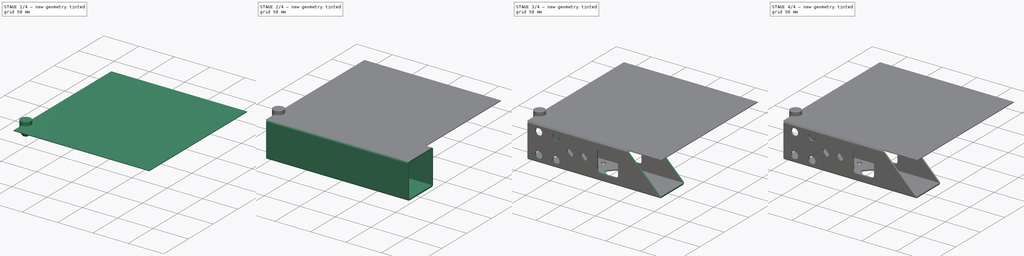
[diagram: build sequence overview — one tinted view per stage of 4, left to right]
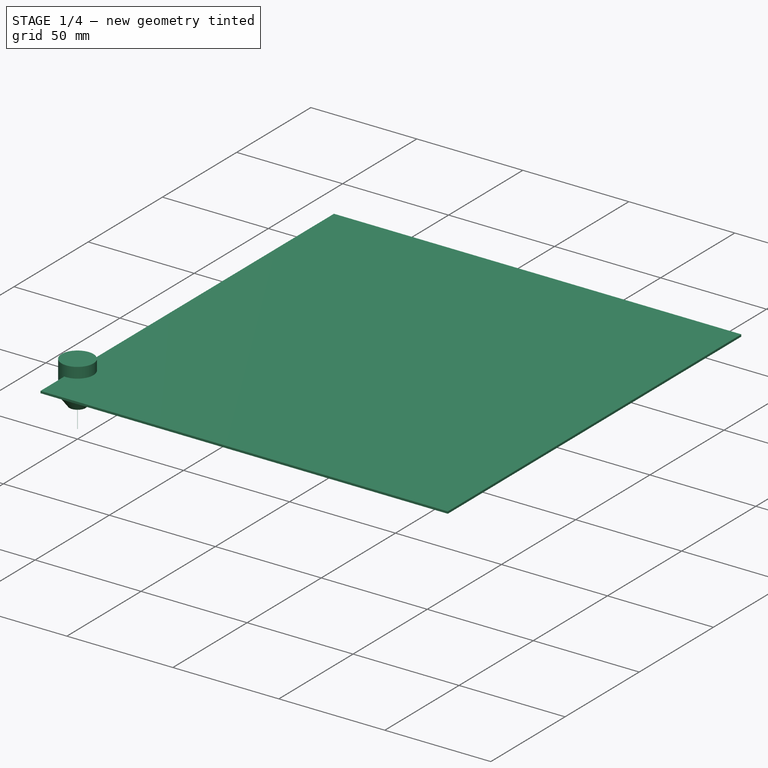
[diagram: stage 1 of 4 — iso view after this stage's code; geometry added in this stage tinted green]
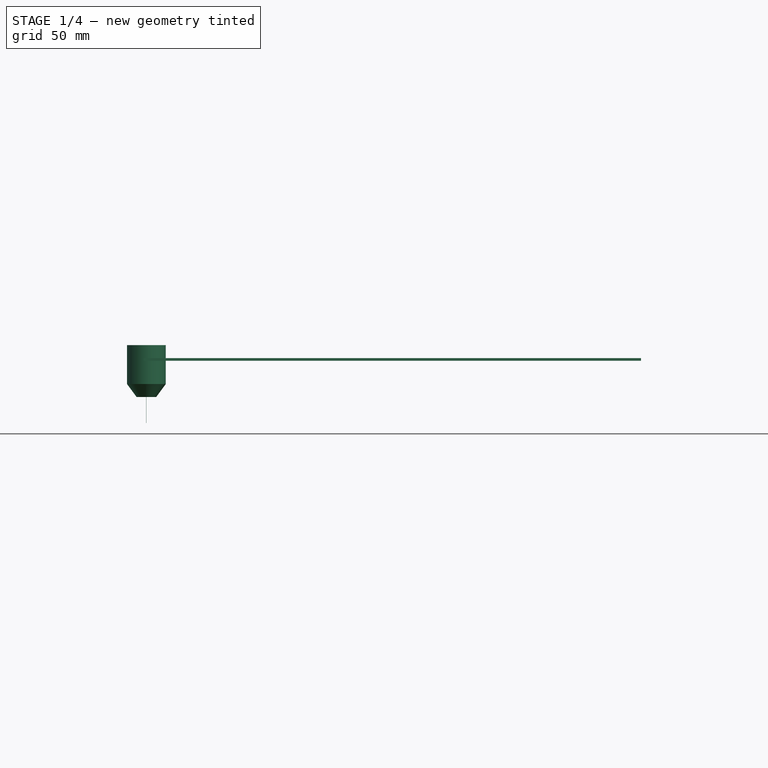
[diagram: stage 1 of 4 — front view after this stage's code; geometry added in this stage tinted green]
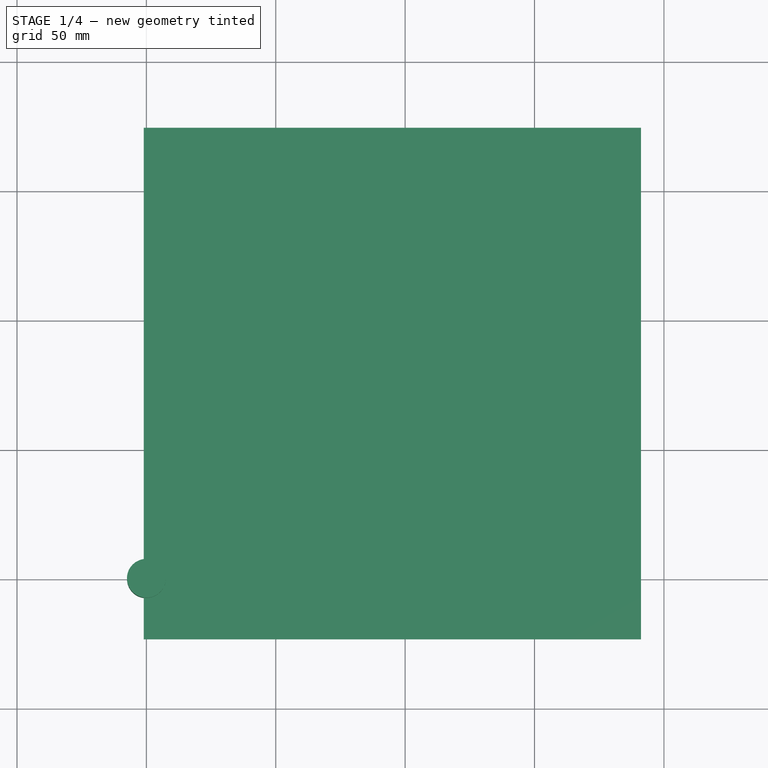
[diagram: stage 1 of 4 — top view after this stage's code; geometry added in this stage tinted green]
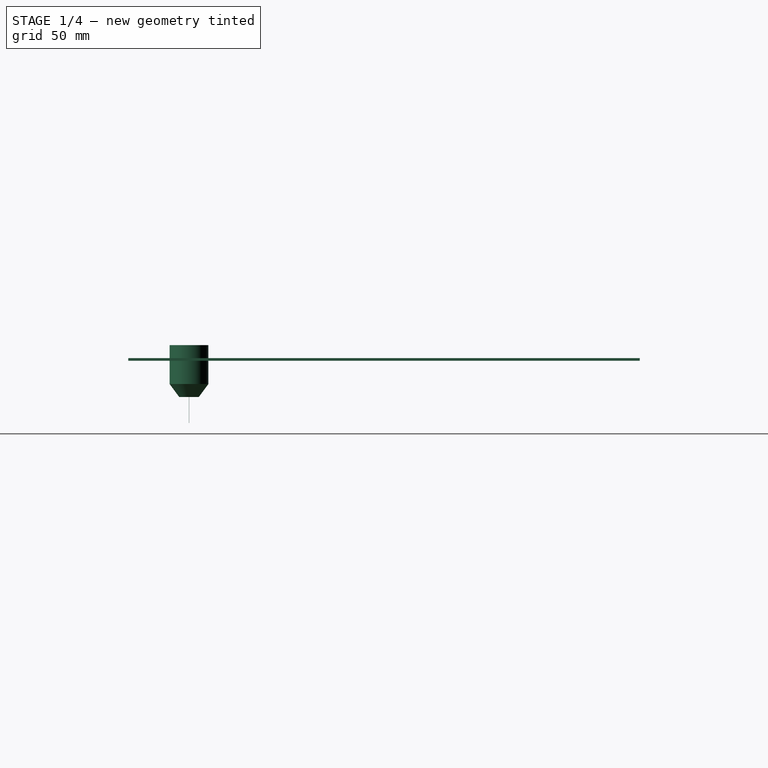
[diagram: stage 1 of 4 — right view after this stage's code; geometry added in this stage tinted green]
FCSTD DOCUMENT  (FreeCAD 0.20R25644 (Git))
Label: tube_normalcut_path
License: All rights reserved
LicenseURL: http://en.wikipedia.org/wiki/All_rights_reserved
objects: Part::FeaturePython×8, Sketcher::SketchObject×5, Part::Feature×4, PartDesign::Pocket×3, Path::FeaturePython×3, Part::Offset×2, App::DocumentObjectGroup×2, PartDesign::Pad×1, PartDesign::Body×1, Part::MultiCommon×1, App::FeaturePython×1, Part::Part2DObjectPython×1, Path::FeatureCompoundPython×1
note: 30 computed .brp shape members not serialized (recipe doc carries the construction recipe); baked Part::Feature solids carry a one-line shape summary decoded from their .brp

FEATURE [Part::Feature] Shape002
  Placement = pos=(-2.1e-14,199.635,45) rot=(1,0,0;1.5708rad)
  shape: bbox 144.7 x 3.927 x 2e-07 mm, 1 faces, 0 solids (baked)
FEATURE [Part::FeaturePython] Facebinder005  # WARN: FeaturePython — macro-defined, semantics opaque (R4)
  Area = 6216.74
  Extrusion = 0
  Faces = -> [Common]
  Placement = pos=(2e-15,146.781,-6.79e-13) rot=(-1,0,0;1.5708rad)
  RemoveSplitter = false
  Sew = false
FEATURE [Part::Feature] Shape001
  Placement = pos=(2.9e-14,109.635,45) rot=(1,0,0;1.5708rad)
  shape: bbox 190.2 x 3.927 x 2e-07 mm, 1 faces, 0 solids (baked)
FEATURE [Part::FeaturePython] Facebinder004  # WARN: FeaturePython — macro-defined, semantics opaque (R4)
  Area = 7301.01
  Extrusion = 0
  Faces = -> [Common]
  Placement = pos=(-5e-15,97.854,1.4e-14) rot=(1,0,0;3.14159rad)
  RemoveSplitter = false
  Sew = false
FEATURE [Part::Feature] Shape
  Placement = pos=(2.9e-14,64.635,-5.76e-13) rot=(1,0,0;1.5708rad)
  shape: bbox 190.2 x 3.927 x 2e-07 mm, 1 faces, 0 solids (baked)
FEATURE [Part::FeaturePython] Facebinder003  # WARN: FeaturePython — macro-defined, semantics opaque (R4)
  Area = 6216.74
  Extrusion = 0
  Faces = -> [Common]
  Placement = pos=(-3e-15,48.927,-6.04e-13) rot=(1,0,0;1.5708rad)
  RemoveSplitter = false
  Sew = false
FEATURE [Part::Feature] Face
  Placement = pos=(-2.8e-14,48.927,1.108e-12) rot=(1,0,0;1.5708rad)
  shape: bbox 144.7 x 3.927 x 2e-07 mm, 1 faces, 0 solids (baked)
FEATURE [Part::FeaturePython] Facebinder002  # WARN: FeaturePython — macro-defined, semantics opaque (R4)
  Area = 5141.01
  Extrusion = 0
  Faces = -> [Common]
  RemoveSplitter = false
  Sew = false
FEATURE [Sketcher::SketchObject] Sketch004
  FullyConstrained = false
  Placement = pos=(0,0,25) rot=(0,0,1;0rad)
  sketch-geometry (108):
    g0: LineSegment StartX=-6.1e-15 StartY=-22.5 StartZ=0 EndX=-6.1e-15 EndY=22.5 EndZ=0
    g1: LineSegment StartX=142.154 StartY=22.5 StartZ=0 EndX=142.154 EndY=-22.5 EndZ=0
    g2: ArcOfCircle CenterX=115 CenterY=15.5563 CenterZ=0 NormalX=0 NormalY=0 NormalZ=1 AngleXU=0 Radius=4 StartAngle=0.785398 EndAngle=2.35619
    g3: LineSegment StartX=117.828 StartY=18.3848 StartZ=0 EndX=133.385 EndY=2.82843 EndZ=0
    g4: ArcOfCircle CenterX=130.556 CenterY=0 CenterZ=0 NormalX=0 NormalY=0 NormalZ=1 AngleXU=0 Radius=4 StartAngle=5.49779 EndAngle=7.06858
    g5: LineSegment StartX=133.385 StartY=-2.82843 StartZ=0 EndX=117.828 EndY=-18.3848 EndZ=0
    g6: ArcOfCircle CenterX=115 CenterY=-15.5563 CenterZ=0 NormalX=0 NormalY=0 NormalZ=1 AngleXU=0 Radius=4 StartAngle=3.92699 EndAngle=5.49779
    g7: LineSegment StartX=112.172 StartY=-18.3848 StartZ=0 EndX=96.6152 EndY=-2.82843 EndZ=0
    g8: ArcOfCircle CenterX=99.4437 CenterY=0 CenterZ=0 NormalX=0 NormalY=0 NormalZ=1 AngleXU=0 Radius=4 StartAngle=2.35619 EndAngle=3.92699
    g9: LineSegment StartX=96.6152 StartY=2.82843 StartZ=0 EndX=112.172 EndY=18.3848 EndZ=0
    g10: Circle CenterX=81.0019 CenterY=-15 CenterZ=0 NormalX=0 NormalY=0 NormalZ=1 AngleXU=0 Radius=3
    g11: Circle CenterX=81.0019 CenterY=-4e-16 CenterZ=0 NormalX=0 NormalY=0 NormalZ=1 AngleXU=0 Radius=3
    g12: Circle CenterX=81.0019 CenterY=15 CenterZ=0 NormalX=0 NormalY=0 NormalZ=1 AngleXU=0 Radius=3
    g13: Circle CenterX=60.9981 CenterY=-15 CenterZ=0 NormalX=0 NormalY=0 NormalZ=-1 AngleXU=0 Radius=3
    g14: Circle CenterX=60.9981 CenterY=-2e-16 CenterZ=0 NormalX=0 NormalY=0 NormalZ=-1 AngleXU=0 Radius=3
    g15: LineSegment StartX=46 StartY=-5 StartZ=0 EndX=46 EndY=5 EndZ=0
    g16: LineSegment StartX=36 StartY=-5 StartZ=0 EndX=46 EndY=-5 EndZ=0
    g17: LineSegment StartX=36 StartY=5 StartZ=0 EndX=36 EndY=-5 EndZ=0
    g18: LineSegment StartX=46 StartY=5 StartZ=0 EndX=36 EndY=5 EndZ=0
    g19: LineSegment StartX=26 StartY=-5 StartZ=0 EndX=26 EndY=5 EndZ=0
    g20: LineSegment StartX=16 StartY=-5 StartZ=0 EndX=26 EndY=-5 EndZ=0
    g21: LineSegment StartX=16 StartY=5 StartZ=0 EndX=16 EndY=-5 EndZ=0
    g22: LineSegment StartX=26 StartY=5 StartZ=0 EndX=16 EndY=5 EndZ=0
    g23: Circle CenterX=60.9981 CenterY=15 CenterZ=0 NormalX=0 NormalY=0 NormalZ=-1 AngleXU=0 Radius=3
    g24: BSplineCurve PolesCount=2 KnotsCount=2 Degree=1 IsPeriodic=0
    g25: BSplineCurve PolesCount=9 KnotsCount=2 Degree=8 IsPeriodic=0
    g26: LineSegment StartX=1.23e-14 StartY=26.427 StartZ=0 EndX=1.23e-14 EndY=71.427 EndZ=0
    g27: LineSegment StartX=189.654 StartY=71.427 StartZ=0 EndX=144.654 EndY=26.427 EndZ=0
    g28: LineSegment StartX=126 StartY=33.927 StartZ=0 EndX=104 EndY=33.927 EndZ=0
    g29: ArcOfCircle CenterX=104 CenterY=37.927 CenterZ=0 NormalX=9e-16 NormalY=-2e-16 NormalZ=1 AngleXU=0 Radius=4 StartAngle=3.14159 EndAngle=4.71239
    g30: LineSegment StartX=100 StartY=37.927 StartZ=0 EndX=100 EndY=59.927 EndZ=0
    g31: ArcOfCircle CenterX=104 CenterY=59.927 CenterZ=0 NormalX=9e-16 NormalY=-2e-16 NormalZ=1 AngleXU=0 Radius=4 StartAngle=1.5708 EndAngle=3.14159
    g32: LineSegment StartX=104 StartY=63.927 StartZ=0 EndX=126 EndY=63.927 EndZ=0
    g33: ArcOfCircle CenterX=126 CenterY=59.927 CenterZ=0 NormalX=9e-16 NormalY=-2e-16 NormalZ=1 AngleXU=0 Radius=4 StartAngle=0 EndAngle=1.5708
    g34: LineSegment StartX=130 StartY=59.927 StartZ=0 EndX=130 EndY=37.927 EndZ=0
    g35: ArcOfCircle CenterX=126 CenterY=37.927 CenterZ=0 NormalX=9e-16 NormalY=-2e-16 NormalZ=1 AngleXU=0 Radius=4 StartAngle=4.71239 EndAngle=6.28319
    g36: LineSegment StartX=80.29 StartY=52.467 StartZ=0 EndX=78.88 EndY=51.047 EndZ=0
    g37: ArcOfCircle CenterX=82.415 CenterY=50.342 CenterZ=0 NormalX=9e-16 NormalY=-2e-16 NormalZ=1 AngleXU=0 Radius=3.0052 StartAngle=5.49779 EndAngle=8.63938
    g38: LineSegment StartX=83.12 StartY=46.807 StartZ=0 EndX=84.54 EndY=48.217 EndZ=0
    g39: LineSegment StartX=81.71 StartY=45.387 StartZ=0 EndX=83.12 EndY=46.807 EndZ=0
    g40: ArcOfCircle CenterX=79.585 CenterY=47.512 CenterZ=0 NormalX=9e-16 NormalY=-2e-16 NormalZ=1 AngleXU=0 Radius=3.0052 StartAngle=2.35619 EndAngle=5.49779
    g41: LineSegment StartX=78.88 StartY=51.047 StartZ=0 EndX=77.46 EndY=49.637 EndZ=0
    g42: Circle CenterX=41 CenterY=33.927 CenterZ=0 NormalX=-9e-16 NormalY=2e-16 NormalZ=-1 AngleXU=3.14159 Radius=4.99925
    g43: Circle CenterX=16 CenterY=33.927 CenterZ=0 NormalX=-9e-16 NormalY=2e-16 NormalZ=-1 AngleXU=3.14159 Radius=5
    g44: LineSegment StartX=60.29 StartY=52.467 StartZ=0 EndX=58.88 EndY=51.047 EndZ=0
    g45: ArcOfCircle CenterX=62.415 CenterY=50.342 CenterZ=0 NormalX=9e-16 NormalY=-2e-16 NormalZ=1 AngleXU=0 Radius=3.0052 StartAngle=5.49779 EndAngle=8.63938
    g46: LineSegment StartX=63.12 StartY=46.807 StartZ=0 EndX=64.54 EndY=48.217 EndZ=0
    g47: LineSegment StartX=61.71 StartY=45.387 StartZ=0 EndX=63.12 EndY=46.807 EndZ=0
    g48: ArcOfCircle CenterX=59.585 CenterY=47.512 CenterZ=0 NormalX=9e-16 NormalY=-2e-16 NormalZ=1 AngleXU=0 Radius=3.0052 StartAngle=2.35619 EndAngle=5.49779
    g49: LineSegment StartX=58.88 StartY=51.047 StartZ=0 EndX=57.46 EndY=49.637 EndZ=0
    g50: Circle CenterX=41 CenterY=63.927 CenterZ=0 NormalX=-9e-16 NormalY=2e-16 NormalZ=-1 AngleXU=3.14159 Radius=4.99925
    g51: Circle CenterX=16 CenterY=63.927 CenterZ=0 NormalX=-9e-16 NormalY=2e-16 NormalZ=-1 AngleXU=3.14159 Radius=5
    g52: BSplineCurve PolesCount=2 KnotsCount=2 Degree=1 IsPeriodic=0
    g53: BSplineCurve PolesCount=8 KnotsCount=2 Degree=7 IsPeriodic=0
    g54: LineSegment StartX=1.6e-15 StartY=75.354 StartZ=0 EndX=1.6e-15 EndY=120.354 EndZ=0
    g55: LineSegment StartX=190.154 StartY=120.354 StartZ=0 EndX=190.154 EndY=75.354 EndZ=0
    g56: Circle CenterX=81.0019 CenterY=82.854 CenterZ=0 NormalX=0 NormalY=-3e-16 NormalZ=-1 AngleXU=-1.5708 Radius=3
    g57: LineSegment StartX=133.385 StartY=95.0256 StartZ=0 EndX=117.828 EndY=79.4692 EndZ=0
    g58: ArcOfCircle CenterX=115 CenterY=82.2976 CenterZ=0 NormalX=0 NormalY=3e-16 NormalZ=1 AngleXU=-1.5708 Radius=4 StartAngle=3.92699 EndAngle=5.49779
    g59: LineSegment StartX=112.172 StartY=79.4692 StartZ=0 EndX=96.6152 EndY=95.0256 EndZ=0
    g60: ArcOfCircle CenterX=99.4437 CenterY=97.854 CenterZ=0 NormalX=0 NormalY=3e-16 NormalZ=1 AngleXU=-1.5708 Radius=4 StartAngle=2.35619 EndAngle=3.92699
    g61: LineSegment StartX=96.6152 StartY=100.682 StartZ=0 EndX=112.172 EndY=116.239 EndZ=0
    g62: ArcOfCircle CenterX=115 CenterY=113.41 CenterZ=0 NormalX=0 NormalY=3e-16 NormalZ=1 AngleXU=-1.5708 Radius=4 StartAngle=0.785398 EndAngle=2.35619
    g63: LineSegment StartX=117.828 StartY=116.239 StartZ=0 EndX=133.385 EndY=100.682 EndZ=0
    g64: ArcOfCircle CenterX=130.556 CenterY=97.854 CenterZ=0 NormalX=0 NormalY=3e-16 NormalZ=1 AngleXU=-1.5708 Radius=4 StartAngle=5.49779 EndAngle=7.06858
    g65: Circle CenterX=81.0019 CenterY=97.854 CenterZ=0 NormalX=0 NormalY=-3e-16 NormalZ=-1 AngleXU=-1.5708 Radius=3
    g66: Circle CenterX=81.0019 CenterY=112.854 CenterZ=0 NormalX=0 NormalY=-3e-16 NormalZ=-1 AngleXU=-1.5708 Radius=3
    g67: Circle CenterX=60.9981 CenterY=82.854 CenterZ=0 NormalX=0 NormalY=-3e-16 NormalZ=-1 AngleXU=1.5708 Radius=3
    g68: LineSegment StartX=46 StartY=92.854 StartZ=0 EndX=46 EndY=102.854 EndZ=0
    g69: LineSegment StartX=36 StartY=92.854 StartZ=0 EndX=46 EndY=92.854 EndZ=0
    g70: LineSegment StartX=36 StartY=102.854 StartZ=0 EndX=36 EndY=92.854 EndZ=0
    g71: LineSegment StartX=46 StartY=102.854 StartZ=0 EndX=36 EndY=102.854 EndZ=0
    g72: LineSegment StartX=26 StartY=92.854 StartZ=0 EndX=26 EndY=102.854 EndZ=0
    g73: LineSegment StartX=16 StartY=92.854 StartZ=0 EndX=26 EndY=92.854 EndZ=0
    g74: LineSegment StartX=16 StartY=102.854 StartZ=0 EndX=16 EndY=92.854 EndZ=0
    g75: LineSegment StartX=26 StartY=102.854 StartZ=0 EndX=16 EndY=102.854 EndZ=0
    g76: Circle CenterX=60.9981 CenterY=97.854 CenterZ=0 NormalX=0 NormalY=-3e-16 NormalZ=-1 AngleXU=1.5708 Radius=3
    g77: Circle CenterX=60.9981 CenterY=112.854 CenterZ=0 NormalX=0 NormalY=-3e-16 NormalZ=-1 AngleXU=1.5708 Radius=3
    g78: BSplineCurve PolesCount=2 KnotsCount=2 Degree=1 IsPeriodic=0
    g79: BSplineCurve PolesCount=8 KnotsCount=2 Degree=7 IsPeriodic=0
    g80: LineSegment StartX=-1.34e-14 StartY=124.281 StartZ=0 EndX=-1.34e-14 EndY=169.281 EndZ=0
    g81: LineSegment StartX=144.654 StartY=169.281 StartZ=0 EndX=189.654 EndY=124.281 EndZ=0
    g82: ArcOfCircle CenterX=104 CenterY=157.781 CenterZ=0 NormalX=-1e-15 NormalY=2e-16 NormalZ=1 AngleXU=0 Radius=4 StartAngle=1.5708 EndAngle=3.14159
    g83: LineSegment StartX=104 StartY=161.781 StartZ=0 EndX=126 EndY=161.781 EndZ=0
    g84: ArcOfCircle CenterX=126 CenterY=157.781 CenterZ=0 NormalX=-1e-15 NormalY=2e-16 NormalZ=1 AngleXU=0 Radius=4 StartAngle=0 EndAngle=1.5708
    g85: LineSegment StartX=130 StartY=157.781 StartZ=0 EndX=130 EndY=135.781 EndZ=0
    g86: ArcOfCircle CenterX=126 CenterY=135.781 CenterZ=0 NormalX=-1e-15 NormalY=2e-16 NormalZ=1 AngleXU=0 Radius=4 StartAngle=4.71239 EndAngle=6.28319
    g87: LineSegment StartX=126 StartY=131.781 StartZ=0 EndX=104 EndY=131.781 EndZ=0
    g88: ArcOfCircle CenterX=104 CenterY=135.781 CenterZ=0 NormalX=-1e-15 NormalY=2e-16 NormalZ=1 AngleXU=0 Radius=4 StartAngle=3.14159 EndAngle=4.71239
    g89: LineSegment StartX=100 StartY=135.781 StartZ=0 EndX=100 EndY=157.781 EndZ=0
    g90: LineSegment StartX=78.88 StartY=144.661 StartZ=0 EndX=80.29 EndY=143.241 EndZ=0
    g91: LineSegment StartX=77.46 StartY=146.071 StartZ=0 EndX=78.88 EndY=144.661 EndZ=0
    g92: ArcOfCircle CenterX=79.585 CenterY=148.196 CenterZ=0 NormalX=-1e-15 NormalY=2e-16 NormalZ=1 AngleXU=0 Radius=3.0052 StartAngle=0.785398 EndAngle=3.92699
    g93: LineSegment StartX=83.12 StartY=148.901 StartZ=0 EndX=81.71 EndY=150.321 EndZ=0
    g94: LineSegment StartX=84.54 StartY=147.491 StartZ=0 EndX=83.12 EndY=148.901 EndZ=0
    g95: ArcOfCircle CenterX=82.415 CenterY=145.366 CenterZ=0 NormalX=-1e-15 NormalY=2e-16 NormalZ=1 AngleXU=0 Radius=3.0052 StartAngle=3.92699 EndAngle=7.06858
    g96: Circle CenterX=41 CenterY=131.781 CenterZ=0 NormalX=-1e-15 NormalY=2e-16 NormalZ=1 AngleXU=0 Radius=4.99925
    g97: LineSegment StartX=58.88 StartY=144.661 StartZ=0 EndX=60.29 EndY=143.241 EndZ=0
    g98: LineSegment StartX=57.46 StartY=146.071 StartZ=0 EndX=58.88 EndY=144.661 EndZ=0
    g99: ArcOfCircle CenterX=59.585 CenterY=148.196 CenterZ=0 NormalX=-1e-15 NormalY=2e-16 NormalZ=1 AngleXU=0 Radius=3.0052 StartAngle=0.785398 EndAngle=3.92699
    g100: LineSegment StartX=63.12 StartY=148.901 StartZ=0 EndX=61.71 EndY=150.321 EndZ=0
    g101: LineSegment StartX=64.54 StartY=147.491 StartZ=0 EndX=63.12 EndY=148.901 EndZ=0
    g102: ArcOfCircle CenterX=62.415 CenterY=145.366 CenterZ=0 NormalX=-1e-15 NormalY=2e-16 NormalZ=1 AngleXU=0 Radius=3.0052 StartAngle=3.92699 EndAngle=7.06858
    g103: Circle CenterX=16 CenterY=131.781 CenterZ=0 NormalX=-1e-15 NormalY=2e-16 NormalZ=1 AngleXU=0 Radius=5
    g104: Circle CenterX=41 CenterY=161.781 CenterZ=0 NormalX=-1e-15 NormalY=2e-16 NormalZ=1 AngleXU=0 Radius=4.99925
    g105: Circle CenterX=16 CenterY=161.781 CenterZ=0 NormalX=-1e-15 NormalY=2e-16 NormalZ=1 AngleXU=0 Radius=5
    g106: BSplineCurve PolesCount=2 KnotsCount=2 Degree=1 IsPeriodic=0
    g107: BSplineCurve PolesCount=9 KnotsCount=2 Degree=8 IsPeriodic=0
  constraints (101):
    c: Vertical(g0)
    c: Coincident(g2,g3)
    c: Coincident(g3,g4)
    c: Coincident(g4,g5)
    c: Coincident(g5,g6)
    c: Coincident(g6,g7)
    c: Coincident(g7,g8)
    c: Coincident(g8,g9)
    c: Coincident(g9,g2)
    c: Vertical(g15)
    c: Coincident(g15,g16)
    c: Horizontal(g16)
    c: Coincident(g16,g17)
    c: Vertical(g17)
    c: Coincident(g17,g18)
    c: Horizontal(g18)
    c: Coincident(g18,g15)
    c: Vertical(g19)
    c: Coincident(g19,g20)
    c: Horizontal(g20)
    c: Coincident(g20,g21)
    c: Vertical(g21)
    c: Coincident(g21,g22)
    c: Horizontal(g22)
    c: Coincident(g22,g19)
    c: Vertical(g26)
    c: Horizontal(g28)
    c: Coincident(g28,g29)
    c: Coincident(g29,g30)
    c: Vertical(g30)
    c: Coincident(g30,g31)
    c: Coincident(g31,g32)
    c: Horizontal(g32)
    c: Coincident(g32,g33)
    c: Coincident(g33,g34)
    c: Vertical(g34)
    c: Coincident(g34,g35)
    c: Coincident(g35,g28)
    c: Coincident(g36,g37)
    c: Coincident(g37,g38)
    c: Coincident(g38,g39)
    c: Coincident(g39,g40)
    c: Coincident(g40,g41)
    c: Coincident(g41,g36)
    c: Coincident(g44,g45)
    c: Coincident(g45,g46)
    c: Coincident(g46,g47)
    c: Coincident(g47,g48)
    c: Coincident(g48,g49)
    c: Coincident(g49,g44)
    c: Vertical(g54)
    c: Vertical(g55)
    c: Coincident(g57,g58)
    c: Coincident(g58,g59)
    c: Coincident(g59,g60)
    c: Coincident(g60,g61)
    c: Coincident(g61,g62)
    c: Coincident(g62,g63)
    c: Coincident(g63,g64)
    c: Coincident(g64,g57)
    c: Vertical(g68)
    c: Coincident(g68,g69)
    c: Horizontal(g69)
    c: Coincident(g69,g70)
    c: Vertical(g70)
    c: Coincident(g70,g71)
    c: Horizontal(g71)
    c: Coincident(g71,g68)
    c: Vertical(g72)
    c: Coincident(g72,g73)
    c: Horizontal(g73)
    c: Coincident(g73,g74)
    c: Vertical(g74)
    c: Coincident(g74,g75)
    c: Horizontal(g75)
    c: Coincident(g75,g72)
    c: Vertical(g80)
    c: Coincident(g82,g83)
    c: Horizontal(g83)
    c: Coincident(g83,g84)
    c: Coincident(g84,g85)
    c: Vertical(g85)
    c: Coincident(g85,g86)
    c: Coincident(g86,g87)
    c: Horizontal(g87)
    c: Coincident(g87,g88)
    c: Coincident(g88,g89)
    c: Vertical(g89)
    c: Coincident(g89,g82)
    c: Coincident(g90,g91)
    c: Coincident(g91,g92)
    c: Coincident(g92,g93)
    c: Coincident(g93,g94)
    c: Coincident(g94,g95)
    c: Coincident(g95,g90)
    c: Coincident(g97,g98)
    c: Coincident(g98,g99)
    c: Coincident(g99,g100)
    c: Coincident(g100,g101)
    c: Coincident(g101,g102)
    c: Coincident(g102,g97)
FEATURE [App::FeaturePython] SetupSheet  # Path/CAM operation (typed FeaturePython)
  ClearanceHeightExpression = OpStockZMax+SetupSheet.ClearanceHeightOffset
  ClearanceHeightOffset = 5
  CoolantMode = 0
  CoolantModes = None | Flood | Mist
  FinalDepthExpression = OpFinalDepth
  HorizRapid = 0
  SafeHeightExpression = OpStockZMax+SetupSheet.SafeHeightOffset
  SafeHeightOffset = 3
  StartDepthExpression = OpStartDepth
  StepDownExpression = OpToolDiameter
  VertRapid = 0
FEATURE [Part::Part2DObjectPython] Clone2D  label="Model-Sketch004"  # Draft 2D object (typed FeaturePython)
  Fuse = false
  Objects = -> [Sketch004]
  PathResource = Model
  Placement = pos=(0,0,25) rot=(0,0,1;0rad)
  Scale = (1,1,1)
FEATURE [App::DocumentObjectGroup] Model
  Group = -> [Clone2D]
FEATURE [Part::FeaturePython] Stock  # WARN: FeaturePython — macro-defined, semantics opaque (R4)
  Base = -> Model
  ExtXneg = 1
  ExtXpos = 1
  ExtYneg = 1
  ExtYpos = 1
  ExtZneg = 1
  ExtZpos = 0
  Placement = pos=(-3.7e-14,-22.5,25) rot=(0,0,1;0rad)
  StockType = FromBase
FEATURE [Part::FeaturePython] ToolBit001  label="100um laser"  # Path/CAM toolbit (typed FeaturePython)
  BitPropertyNames = Chipload | CuttingEdgeHeight | Diameter | Flutes | Length | Material | ShankDiameter
  BitShape = <userpath>/Documents/GitHub/FreeCADBuild/Mod/Path/Tools\Shape\laser.fcstd
  Chipload = 0
  CuttingEdgeHeight = 10
  Diameter = 0.1
  File = <userpath>/Documents/GitHub/FreeCADBuild/Mod/Path/Tools/Bit/100um_laser.fctb
  Flutes = 0
  Length = 30
  Material = 0
  ShankDiameter = 15
  ShapeName = laser
FEATURE [Path::FeaturePython] _00um_laser  label="100um laser001"  # Path/CAM operation (typed FeaturePython)
  HorizFeed = 0
  HorizRapid = 0
  SpindleDir = 0
  SpindleSpeed = 0
  Tool = -> ToolBit001
  ToolNumber = 2
  VertFeed = 0
  VertRapid = 0
  expr: HorizRapid = SetupSheet.HorizRapid
  expr: VertRapid = SetupSheet.VertRapid
FEATURE [App::DocumentObjectGroup] Tools
  Group = -> [_00um_laser]
FEATURE [Path::FeaturePython] Engrave  # Path/CAM operation (typed FeaturePython)
  Active = true
  Base = -> [Clone2D]
  ClearanceHeight = 30
  CoolantMode = None
  CycleTime = Cycletime Error
  FinalDepth = 24.9
  OpFinalDepth = 24.9
  OpStartDepth = 25
  OpStockZMax = 25
  OpStockZMin = 24
  OpToolDiameter = 0.1
  SafeHeight = 28
  StartDepth = 25
  StartVertex = 0
  StepDown = 0.1
  ToolController = -> _00um_laser
  expr: ClearanceHeight = OpStockZMax + SetupSheet.ClearanceHeightOffset
  expr: SafeHeight = OpStockZMax + SetupSheet.SafeHeightOffset
  expr: StepDown = OpToolDiameter
  expr: FinalDepth = OpFinalDepth
  expr: StartDepth = OpStartDepth
FEATURE [Path::FeatureCompoundPython] Operations  # Path/CAM operation (typed FeaturePython)
  Group = -> [Engrave]
  UsePlacements = false
FEATURE [Path::FeaturePython] Job  # Path/CAM operation (typed FeaturePython)
  CycleTime = 00:00:00
  Fixtures = G54
  GeometryTolerance = 0.01
  Model = -> Model
  Operations = -> Operations
  OrderOutputBy = 0
  PostProcessor = 7
  SetupSheet = -> SetupSheet
  SplitOutput = false
  Stock = -> Stock
  Tools = -> Tools
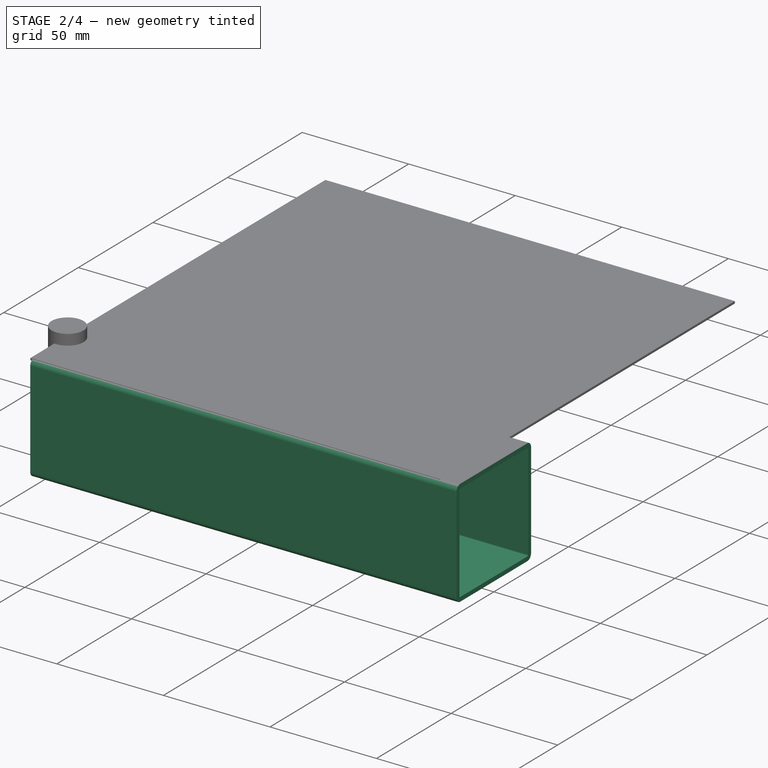
[diagram: stage 2 of 4 — iso view after this stage's code; geometry added in this stage tinted green]
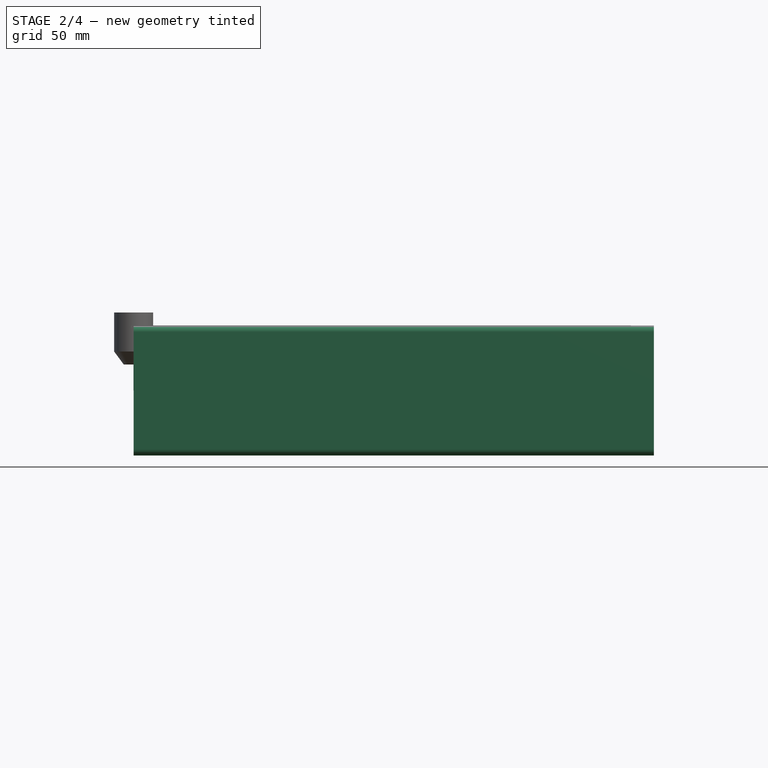
[diagram: stage 2 of 4 — front view after this stage's code; geometry added in this stage tinted green]
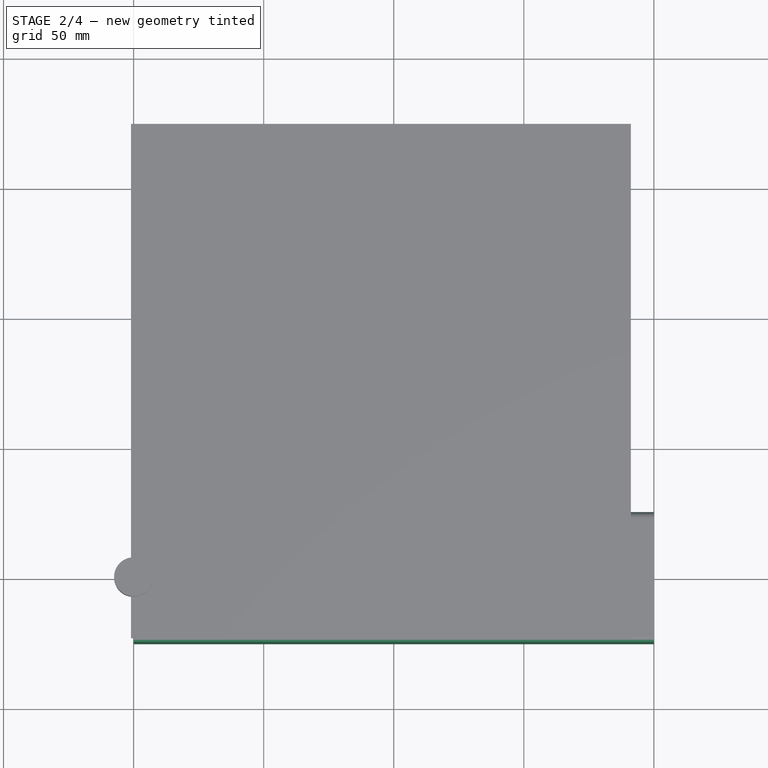
[diagram: stage 2 of 4 — top view after this stage's code; geometry added in this stage tinted green]
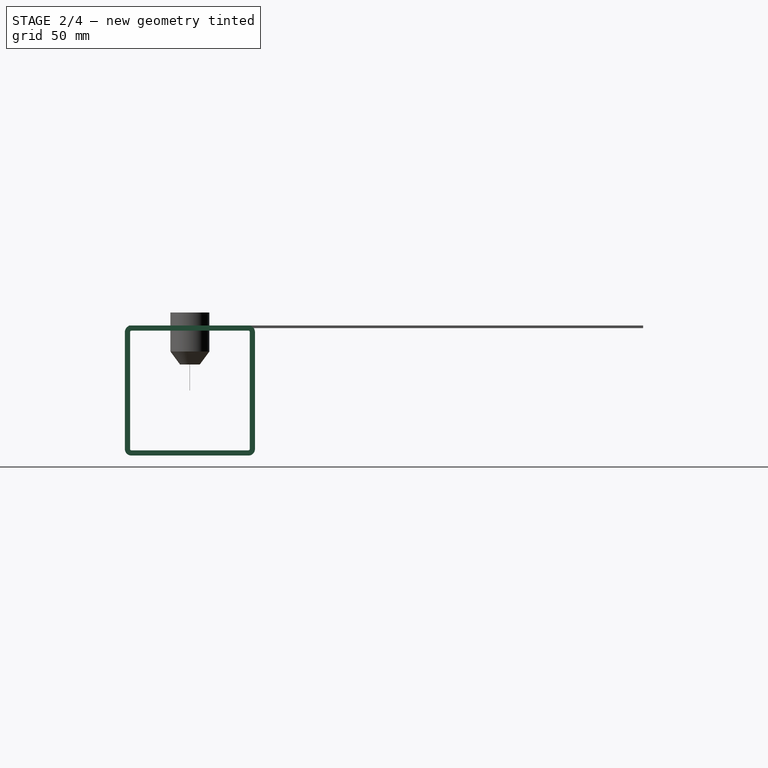
[diagram: stage 2 of 4 — right view after this stage's code; geometry added in this stage tinted green]
FEATURE [Sketcher::SketchObject] Sketch
  FullyConstrained = false
  Placement = pos=(0,0,25) rot=(0,0,1;0rad)
  sketch-geometry (24):
    g0: LineSegment StartX=26 StartY=-5 StartZ=0 EndX=26 EndY=5 EndZ=0
    g1: LineSegment StartX=26 StartY=5 StartZ=0 EndX=16 EndY=5 EndZ=0
    g2: LineSegment StartX=16 StartY=5 StartZ=0 EndX=16 EndY=-5 EndZ=0
    g3: LineSegment StartX=16 StartY=-5 StartZ=0 EndX=26 EndY=-5 EndZ=0
    g4: LineSegment StartX=46 StartY=-5 StartZ=0 EndX=46 EndY=5 EndZ=0
    g5: LineSegment StartX=46 StartY=5 StartZ=0 EndX=36 EndY=5 EndZ=0
    g6: LineSegment StartX=36 StartY=5 StartZ=0 EndX=36 EndY=-5 EndZ=0
    g7: LineSegment StartX=36 StartY=-5 StartZ=0 EndX=46 EndY=-5 EndZ=0
    g8: Circle CenterX=60.9981 CenterY=-15 CenterZ=0 NormalX=0 NormalY=0 NormalZ=-1 AngleXU=0 Radius=3
    g9: Circle CenterX=60.9981 CenterY=-2e-16 CenterZ=0 NormalX=0 NormalY=0 NormalZ=-1 AngleXU=0 Radius=3
    g10: Circle CenterX=60.9981 CenterY=15 CenterZ=0 NormalX=0 NormalY=0 NormalZ=-1 AngleXU=0 Radius=3
    g11: Circle CenterX=81.0019 CenterY=15 CenterZ=0 NormalX=0 NormalY=0 NormalZ=1 AngleXU=0 Radius=3
    g12: Circle CenterX=81.0019 CenterY=-4e-16 CenterZ=0 NormalX=0 NormalY=0 NormalZ=1 AngleXU=0 Radius=3
    g13: Circle CenterX=81.0019 CenterY=-15 CenterZ=0 NormalX=0 NormalY=0 NormalZ=1 AngleXU=0 Radius=3
    g14: ArcOfCircle CenterX=115 CenterY=15.5563 CenterZ=0 NormalX=0 NormalY=0 NormalZ=1 AngleXU=0 Radius=4 StartAngle=0.785398 EndAngle=2.35619
    g15: LineSegment StartX=117.828 StartY=18.3848 StartZ=0 EndX=133.385 EndY=2.82843 EndZ=0
    g16: ArcOfCircle CenterX=130.556 CenterY=0 CenterZ=0 NormalX=0 NormalY=0 NormalZ=1 AngleXU=0 Radius=4 StartAngle=5.49779 EndAngle=7.06858
    g17: LineSegment StartX=133.385 StartY=-2.82843 StartZ=0 EndX=117.828 EndY=-18.3848 EndZ=0
    g18: ArcOfCircle CenterX=115 CenterY=-15.5563 CenterZ=0 NormalX=0 NormalY=0 NormalZ=1 AngleXU=0 Radius=4 StartAngle=3.92699 EndAngle=5.49779
    g19: LineSegment StartX=112.172 StartY=-18.3848 StartZ=0 EndX=96.6152 EndY=-2.82843 EndZ=0
    g20: ArcOfCircle CenterX=99.4437 CenterY=0 CenterZ=0 NormalX=0 NormalY=0 NormalZ=1 AngleXU=0 Radius=4 StartAngle=2.35619 EndAngle=3.92699
    g21: LineSegment StartX=96.6152 StartY=2.82843 StartZ=0 EndX=112.172 EndY=18.3848 EndZ=0
    g22: GeomPoint X=115 Y=21.2132 Z=0
    g23: GeomPoint X=115 Y=-21.2132 Z=0
  constraints (24):
    c: Tangent(g14,g15) = 1.5708
    c: Tangent(g15,g16) = 1.5708
    c: Tangent(g16,g17) = 1.5708
    c: Tangent(g17,g18) = 1.5708
    c: Tangent(g18,g19) = 1.5708
    c: Tangent(g19,g20) = 1.5708
    c: Tangent(g20,g21) = 1.5708
    c: Tangent(g21,g14) = 1.5708
    c: Parallel(g15,g19)
    c: Parallel(g17,g21)
    c: Equal(g14,g16)
    c: Equal(g16,g18)
    c: Equal(g18,g20)
    c: PointOnObject(g22,g15)
    c: PointOnObject(g22,g21)
    c: PointOnObject(g23,g17)
    c: PointOnObject(g23,g19)
    c: Perpendicular(g17,g15)
    c: PointOnObject(g16,g-1)
    c: PointOnObject(g20,g-1)
    c: Vertical(g18,g14)
    c: Diameter(g20) = 8
    c: Distance(g21) = 22
    c: DistanceX(g-1,g18) = 115
FEATURE [Sketcher::SketchObject] Sketch001
  FullyConstrained = true
  MapMode = 5
  Placement = pos=(0,0,0) rot=(0.57735,0.57735,0.57735;2.0944rad)
  Support = -> [YZ_Plane]
  sketch-geometry (20):
    g0: ArcOfCircle CenterX=-22.5 CenterY=22.5 CenterZ=0 NormalX=0 NormalY=0 NormalZ=1 AngleXU=0 Radius=2.5 StartAngle=1.5708 EndAngle=3.14159
    g1: LineSegment StartX=-22.5 StartY=25 StartZ=0 EndX=22.5 EndY=25 EndZ=0
    g2: ArcOfCircle CenterX=22.5 CenterY=22.5 CenterZ=0 NormalX=0 NormalY=0 NormalZ=1 AngleXU=0 Radius=2.5 StartAngle=-6.91e-13 EndAngle=1.5708
    g3: LineSegment StartX=25 StartY=22.5 StartZ=0 EndX=25 EndY=-22.5 EndZ=0
    g4: ArcOfCircle CenterX=22.5 CenterY=-22.5 CenterZ=0 NormalX=0 NormalY=0 NormalZ=1 AngleXU=0 Radius=2.5 StartAngle=4.71239 EndAngle=6.28319
    g5: LineSegment StartX=22.5 StartY=-25 StartZ=0 EndX=-22.5 EndY=-25 EndZ=0
    g6: ArcOfCircle CenterX=-22.5 CenterY=-22.5 CenterZ=0 NormalX=0 NormalY=0 NormalZ=1 AngleXU=0 Radius=2.5 StartAngle=3.14159 EndAngle=4.71239
    g7: LineSegment StartX=-25 StartY=-22.5 StartZ=0 EndX=-25 EndY=22.5 EndZ=0
    g8: GeomPoint X=-25 Y=25 Z=0
    g9: GeomPoint X=25 Y=-25 Z=0
    g10: ArcOfCircle CenterX=-22.5 CenterY=22.5 CenterZ=0 NormalX=0 NormalY=0 NormalZ=1 AngleXU=0 Radius=0.5 StartAngle=1.5708 EndAngle=3.14159
    g11: LineSegment StartX=-22.5 StartY=23 StartZ=0 EndX=22.5 EndY=23 EndZ=0
    g12: ArcOfCircle CenterX=22.5 CenterY=22.5 CenterZ=0 NormalX=0 NormalY=0 NormalZ=1 AngleXU=0 Radius=0.5 StartAngle=3.19008e-11 EndAngle=1.5708
    g13: LineSegment StartX=23 StartY=22.5 StartZ=0 EndX=23 EndY=-22.5 EndZ=0
    g14: ArcOfCircle CenterX=22.5 CenterY=-22.5 CenterZ=0 NormalX=0 NormalY=0 NormalZ=1 AngleXU=0 Radius=0.5 StartAngle=4.71239 EndAngle=6.28319
    g15: LineSegment StartX=22.5 StartY=-23 StartZ=0 EndX=-22.5 EndY=-23 EndZ=0
    g16: ArcOfCircle CenterX=-22.5 CenterY=-22.5 CenterZ=0 NormalX=0 NormalY=0 NormalZ=1 AngleXU=0 Radius=0.5 StartAngle=3.14159 EndAngle=4.71239
    g17: LineSegment StartX=-23 StartY=-22.5 StartZ=0 EndX=-23 EndY=22.5 EndZ=0
    g18: GeomPoint X=-23 Y=23 Z=0
    g19: GeomPoint X=23 Y=-23 Z=0
  constraints (45):
    c: Tangent(g0,g1) = 1.5708
    c: Tangent(g1,g2) = 1.5708
    c: Tangent(g2,g3) = 1.5708
    c: Tangent(g3,g4) = 1.5708
    c: Tangent(g4,g5) = 1.5708
    c: Tangent(g5,g6) = 1.5708
    c: Tangent(g6,g7) = 1.5708
    c: Tangent(g7,g0) = 1.5708
    c: Horizontal(g1)
    c: Horizontal(g5)
    c: Vertical(g3)
    c: Vertical(g7)
    c: Equal(g0,g2)
    c: Equal(g2,g4)
    c: Equal(g4,g6)
    c: PointOnObject(g8,g1)
    c: PointOnObject(g8,g7)
    c: PointOnObject(g9,g3)
    c: PointOnObject(g9,g5)
    c: DistanceX(g0,g2) = 50
    c: Equal(g1,g3)
    c: Symmetric(g0,g4,g-1)
    c: Tangent(g10,g11) = 1.5708
    c: Tangent(g11,g12) = 1.5708
    c: Tangent(g12,g13) = 1.5708
    c: Tangent(g13,g14) = 1.5708
    c: Tangent(g14,g15) = 1.5708
    c: Tangent(g15,g16) = 1.5708
    c: Tangent(g16,g17) = 1.5708
    c: Tangent(g17,g10) = 1.5708
    c: Horizontal(g11)
    c: Horizontal(g15)
    c: Vertical(g13)
    c: Vertical(g17)
    c: Equal(g14,g16)
    c: PointOnObject(g18,g11)
    c: PointOnObject(g18,g17)
    c: PointOnObject(g19,g13)
    c: PointOnObject(g19,g15)
    c: Symmetric(g10,g14,g-1)
    c: DistanceY(g11,g1) = 2
    c: Equal(g11,g13)
    c: Equal(g12,g10)
    c: Radius(g2) = 2.5
    c: Coincident(g12,g2)
FEATURE [PartDesign::Pad] Pad
  Direction = (1,-2e-16,3e-16)
  Length = 200
  Length2 = 100
  Placement = pos=(0,0,0) rot=(0.57735,0.57735,0.57735;2.0944rad)
  Profile = -> Sketch001
  Type = 0
FEATURE [Sketcher::SketchObject] Sketch002
  AttachmentOffset = pos=(0,0,0) rot=(0,0,1;1.5708rad)
  FullyConstrained = false
  MapMode = 5
  Placement = pos=(-1.1e-14,-25,1.7e-14) rot=(1,0,0;1.5708rad)
  sketch-geometry (28):
    g0: Circle CenterX=41 CenterY=-15 CenterZ=0 NormalX=0 NormalY=0 NormalZ=1 AngleXU=0 Radius=4.99925
    g1: Circle CenterX=16 CenterY=-15 CenterZ=0 NormalX=0 NormalY=0 NormalZ=1 AngleXU=0 Radius=5
    g2: Circle CenterX=16 CenterY=15 CenterZ=0 NormalX=0 NormalY=0 NormalZ=1 AngleXU=0 Radius=5
    g3: Circle CenterX=41 CenterY=15 CenterZ=0 NormalX=0 NormalY=0 NormalZ=1 AngleXU=0 Radius=4.99925
    g4: LineSegment StartX=58.88 StartY=-2.12 StartZ=0 EndX=60.29 EndY=-3.54 EndZ=0
    g5: ArcOfCircle CenterX=62.415 CenterY=-1.415 CenterZ=0 NormalX=0 NormalY=0 NormalZ=1 AngleXU=0 Radius=3.0052 StartAngle=3.92699 EndAngle=7.06858
    g6: LineSegment StartX=64.54 StartY=0.71 StartZ=0 EndX=63.12 EndY=2.12 EndZ=0
    g7: LineSegment StartX=63.12 StartY=2.12 StartZ=0 EndX=61.71 EndY=3.54 EndZ=0
    g8: ArcOfCircle CenterX=59.585 CenterY=1.415 CenterZ=0 NormalX=0 NormalY=0 NormalZ=1 AngleXU=0 Radius=3.0052 StartAngle=0.785398 EndAngle=3.92699
    g9: LineSegment StartX=57.46 StartY=-0.71 StartZ=0 EndX=58.88 EndY=-2.12 EndZ=0
    g10: LineSegment StartX=78.88 StartY=-2.12 StartZ=0 EndX=80.29 EndY=-3.54 EndZ=0
    g11: ArcOfCircle CenterX=82.415 CenterY=-1.415 CenterZ=0 NormalX=0 NormalY=0 NormalZ=1 AngleXU=0 Radius=3.0052 StartAngle=3.92699 EndAngle=7.06858
    g12: LineSegment StartX=84.54 StartY=0.71 StartZ=0 EndX=83.12 EndY=2.12 EndZ=0
    g13: LineSegment StartX=83.12 StartY=2.12 StartZ=0 EndX=81.71 EndY=3.54 EndZ=0
    g14: ArcOfCircle CenterX=79.585 CenterY=1.415 CenterZ=0 NormalX=0 NormalY=0 NormalZ=1 AngleXU=0 Radius=3.0052 StartAngle=0.785398 EndAngle=3.92699
    g15: LineSegment StartX=77.46 StartY=-0.71 StartZ=0 EndX=78.88 EndY=-2.12 EndZ=0
    g16: ArcOfCircle CenterX=104 CenterY=11 CenterZ=0 NormalX=0 NormalY=0 NormalZ=1 AngleXU=0 Radius=4 StartAngle=1.5708 EndAngle=3.14159
    g17: LineSegment StartX=104 StartY=15 StartZ=0 EndX=126 EndY=15 EndZ=0
    g18: ArcOfCircle CenterX=126 CenterY=11 CenterZ=0 NormalX=0 NormalY=0 NormalZ=1 AngleXU=0 Radius=4 StartAngle=0 EndAngle=1.5708
    g19: LineSegment StartX=130 StartY=11 StartZ=0 EndX=130 EndY=-11 EndZ=0
    g20: ArcOfCircle CenterX=126 CenterY=-11 CenterZ=0 NormalX=0 NormalY=0 NormalZ=1 AngleXU=0 Radius=4 StartAngle=4.71239 EndAngle=6.28319
    g21: LineSegment StartX=126 StartY=-15 StartZ=0 EndX=104 EndY=-15 EndZ=0
    g22: ArcOfCircle CenterX=104 CenterY=-11 CenterZ=0 NormalX=0 NormalY=0 NormalZ=1 AngleXU=0 Radius=4 StartAngle=3.14159 EndAngle=4.71239
    g23: LineSegment StartX=100 StartY=-11 StartZ=0 EndX=100 EndY=11 EndZ=0
    g24: GeomPoint X=100 Y=15 Z=0
    g25: GeomPoint X=130 Y=-15 Z=0
    g26: LineSegment StartX=104 StartY=11 StartZ=0 EndX=115 EndY=0 EndZ=0
    g27: LineSegment StartX=115 StartY=0 StartZ=0 EndX=126 EndY=-11 EndZ=0
  constraints (39):
    c: Coincident(g8,g9)
    c: Coincident(g4,g9)
    c: Coincident(g4,g5)
    c: Coincident(g7,g8)
    c: Coincident(g6,g7)
    c: Coincident(g5,g6)
    c: Coincident(g14,g15)
    c: Coincident(g10,g15)
    c: Coincident(g10,g11)
    c: Coincident(g13,g14)
    c: Coincident(g12,g13)
    c: Coincident(g11,g12)
    c: Tangent(g16,g17) = 1.5708
    c: Tangent(g17,g18) = 1.5708
    c: Tangent(g18,g19) = 1.5708
    c: Tangent(g19,g20) = 1.5708
    c: Tangent(g20,g21) = 1.5708
    c: Tangent(g21,g22) = 1.5708
    c: Tangent(g22,g23) = 1.5708
    c: Tangent(g23,g16) = 1.5708
    c: Horizontal(g17)
    c: Horizontal(g21)
    c: Vertical(g19)
    c: Vertical(g23)
    c: Equal(g16,g18)
    c: Equal(g18,g20)
    c: PointOnObject(g24,g17)
    c: PointOnObject(g24,g23)
    c: PointOnObject(g25,g19)
    c: PointOnObject(g25,g21)
    c: DistanceX(g21,g21) = 22
    c: Equal(g19,g21)
    c: Diameter(g18) = 8
    c: Symmetric(g22,g16,g-1)
    c: Tangent(g26,g27) = -1.5708
    c: Coincident(g26,g16)
    c: Coincident(g27,g20)
    c: PointOnObject(g26,g-1)
    c: DistanceX(g-1,g26) = 115
FEATURE [PartDesign::Pocket] Pocket
  BaseFeature = -> Pad
  Length = 5
  Length2 = 100
  Placement = pos=(0,0,0) rot=(0.57735,0.57735,0.57735;2.0944rad)
  Profile = -> Sketch
  Type = 1
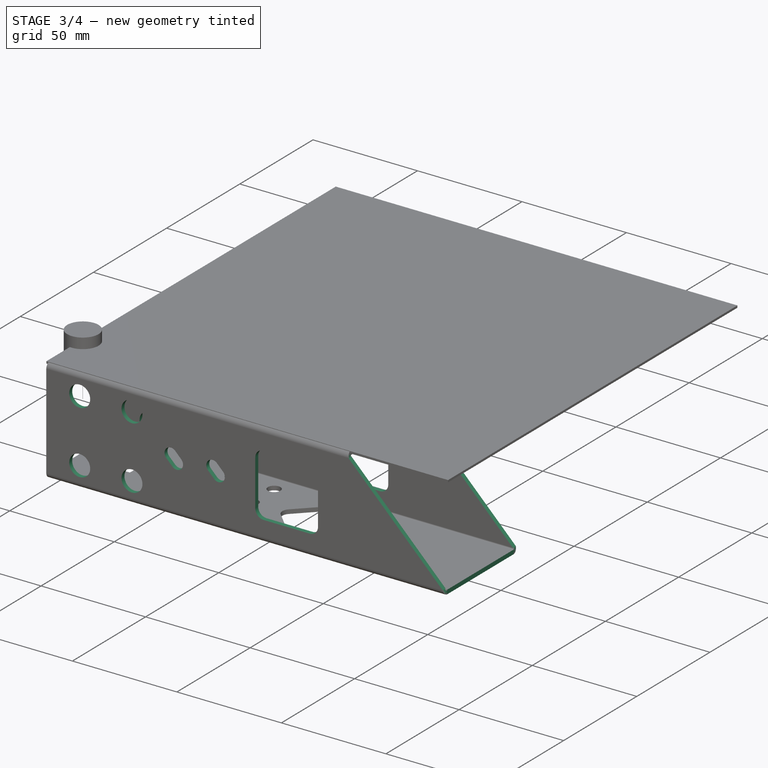
[diagram: stage 3 of 4 — iso view after this stage's code; geometry added in this stage tinted green]
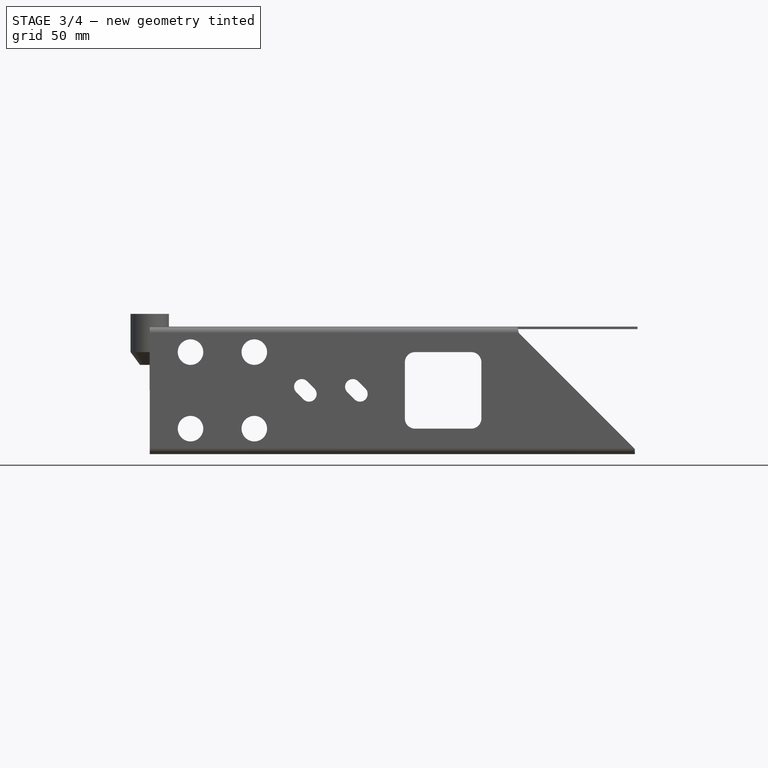
[diagram: stage 3 of 4 — front view after this stage's code; geometry added in this stage tinted green]
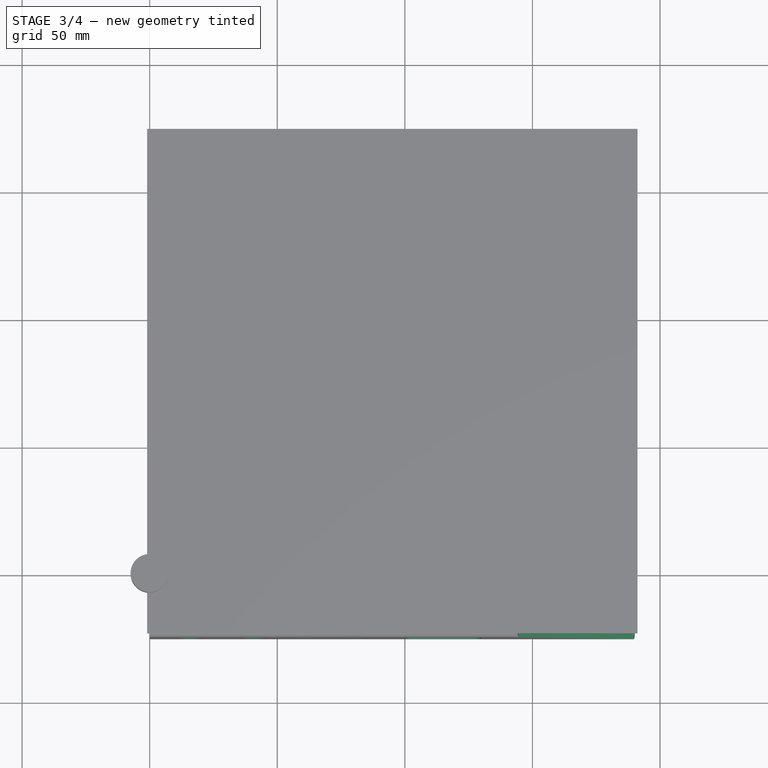
[diagram: stage 3 of 4 — top view after this stage's code; geometry added in this stage tinted green]
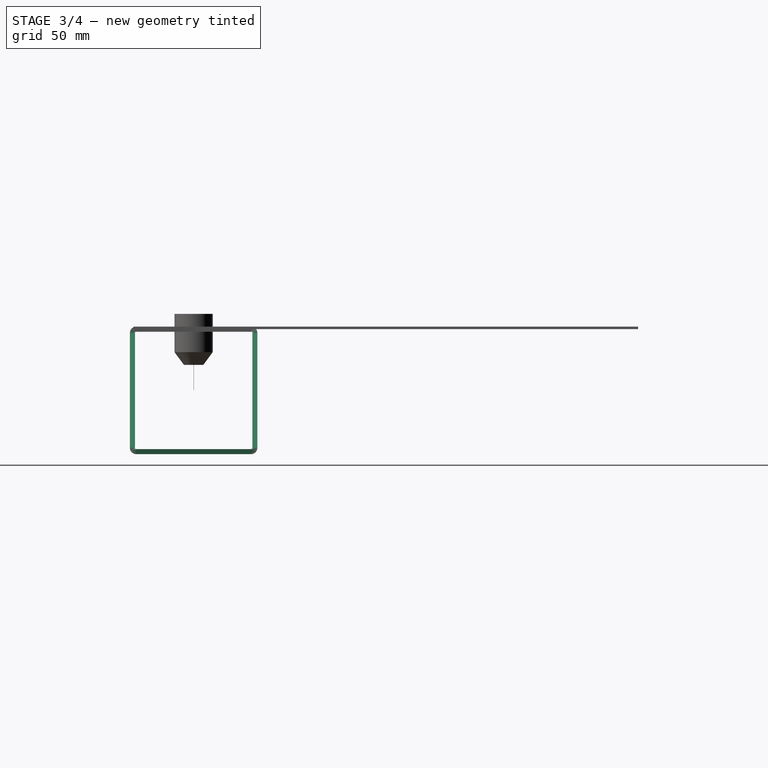
[diagram: stage 3 of 4 — right view after this stage's code; geometry added in this stage tinted green]
FEATURE [PartDesign::Pocket] Pocket001
  BaseFeature = -> Pocket
  Length = 5
  Length2 = 100
  Placement = pos=(0,0,0) rot=(0.57735,0.57735,0.57735;2.0944rad)
  Profile = -> Sketch002
  Type = 1
FEATURE [Sketcher::SketchObject] Sketch003
  FullyConstrained = false
  MapMode = 5
  Placement = pos=(-1.1e-14,-25,5.5e-15) rot=(-0.57735,-0.57735,0.57735;4.18879rad)
  Support = -> [Pocket001]
  sketch-geometry (3):
    g0: LineSegment StartX=-28.5962 StartY=138.558 StartZ=0 EndX=36.3375 EndY=203.491 EndZ=0
    g1: LineSegment StartX=36.3375 StartY=203.491 StartZ=0 EndX=-28.5962 EndY=203.491 EndZ=0
    g2: LineSegment StartX=-28.5962 StartY=203.491 StartZ=0 EndX=-28.5962 EndY=138.558 EndZ=0
  constraints (6):
    c: Coincident(g1,g0)
    c: Horizontal(g1)
    c: Coincident(g2,g1)
    c: Coincident(g2,g0)
    c: Vertical(g2)
    c: Angle(g0) = 0.785398
FEATURE [PartDesign::Pocket] Pocket002  label="Pocket004"
  BaseFeature = -> Pocket001
  Length = 5
  Length2 = 100
  Placement = pos=(0,0,0) rot=(0.57735,0.57735,0.57735;2.0944rad)
  Profile = -> Sketch003
  Type = 1
FEATURE [Part::Offset] Offset001
  Fill = true
  Intersection = false
  Join = 0
  Mode = 0
  SelfIntersection = false
  Source = -> Facebinder001
  Value = -2
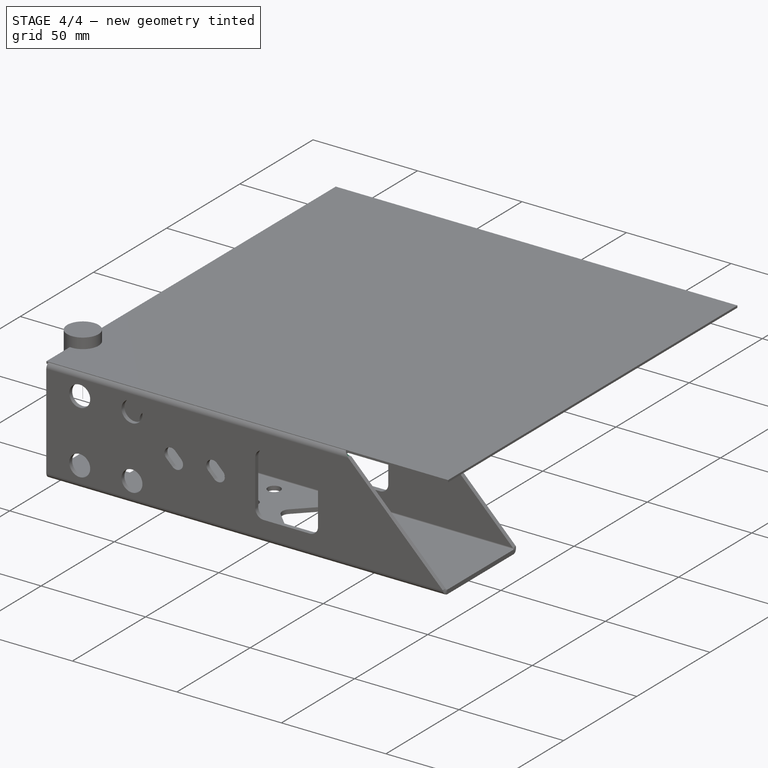
[diagram: stage 4 of 4 — iso view after this stage's code; geometry added in this stage tinted green]
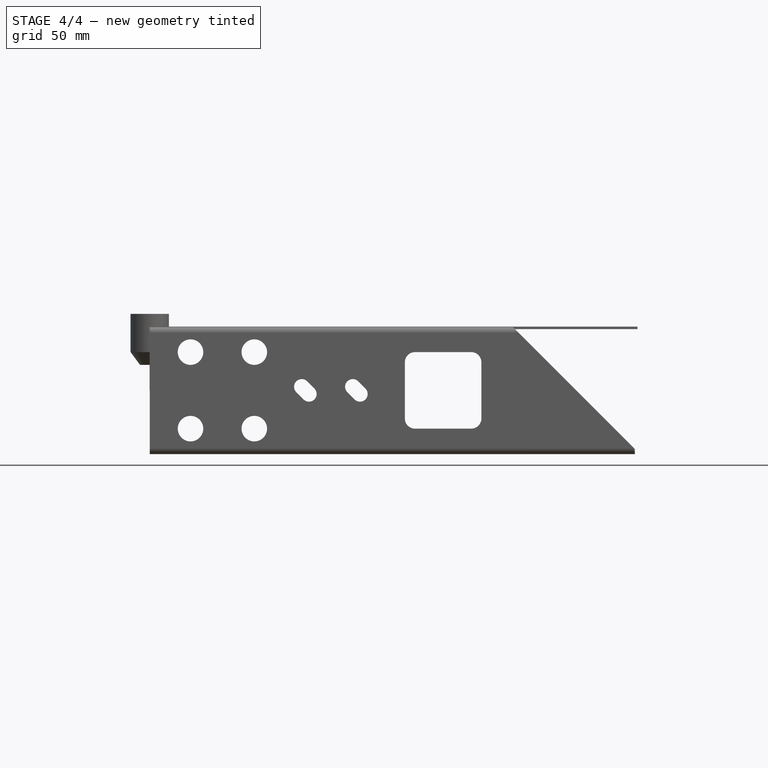
[diagram: stage 4 of 4 — front view after this stage's code; geometry added in this stage tinted green]
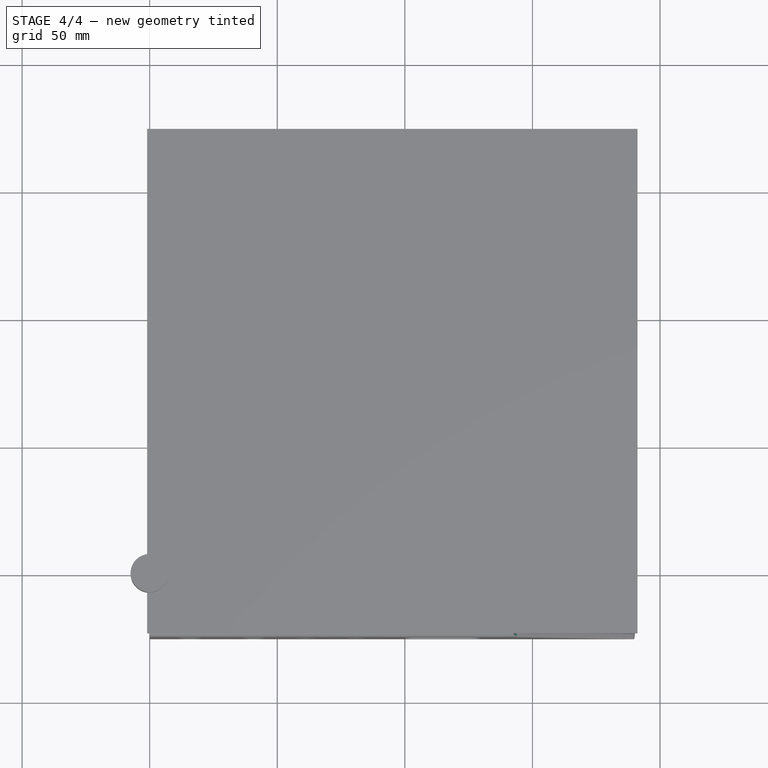
[diagram: stage 4 of 4 — top view after this stage's code; geometry added in this stage tinted green]
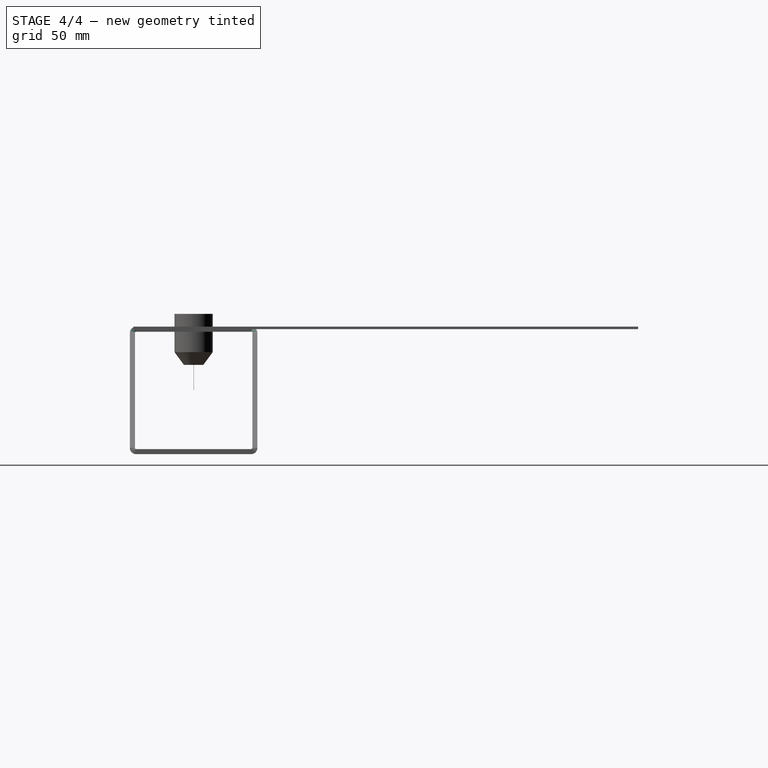
[diagram: stage 4 of 4 — right view after this stage's code; geometry added in this stage tinted green]
FEATURE [PartDesign::Body] Body
  Group = -> [Sketch001,Pad,Sketch,Sketch002,Pocket,Pocket001,Sketch003,Pocket002]
  Origin = -> Origin
  Tip = -> Pocket002
FEATURE [Part::FeaturePython] Facebinder  # WARN: FeaturePython — macro-defined, semantics opaque (R4)
  Area = 27591.2
  Extrusion = 0
  Faces = -> [Pocket002]
  RemoveSplitter = false
  Sew = false
FEATURE [Part::FeaturePython] Facebinder001  # WARN: FeaturePython — macro-defined, semantics opaque (R4)
  Area = 25490.6
  Extrusion = 0
  Faces = -> [Pocket002]
  RemoveSplitter = false
  Sew = false
FEATURE [Part::Offset] Offset
  Fill = true
  Intersection = false
  Join = 0
  Mode = 0
  SelfIntersection = false
  Source = -> Facebinder
  Value = -2
FEATURE [Part::MultiCommon] Common
  Shapes = -> [Offset,Offset001]
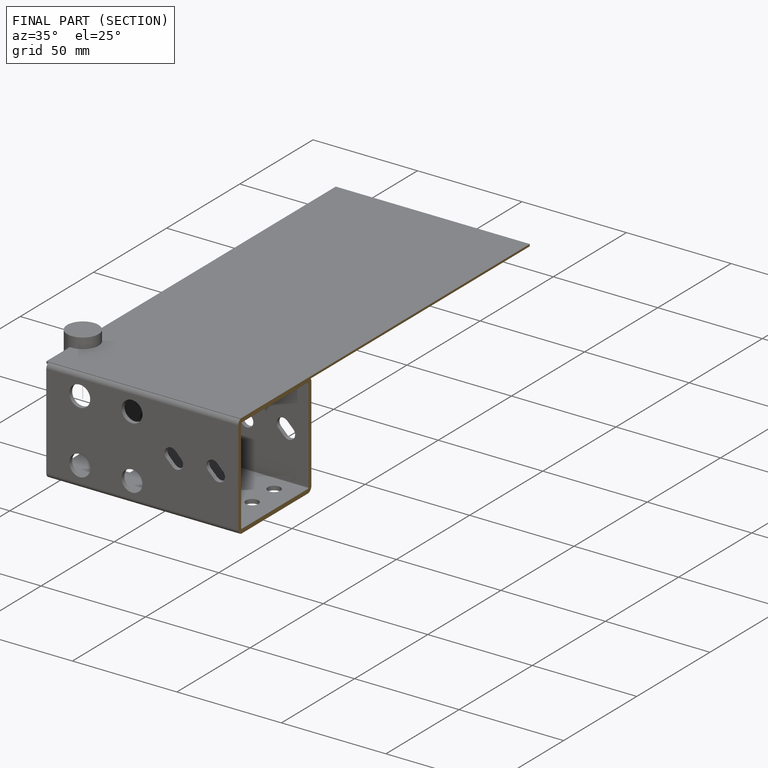
[diagram: finished part — half-section view (interior)]
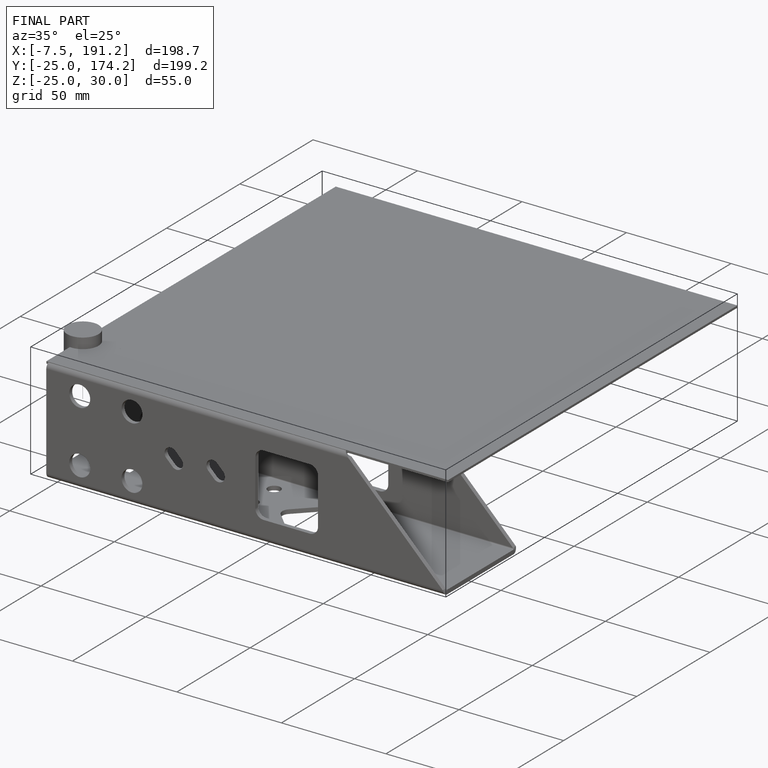
[diagram: finished part — iso view with bounding-box wireframe]
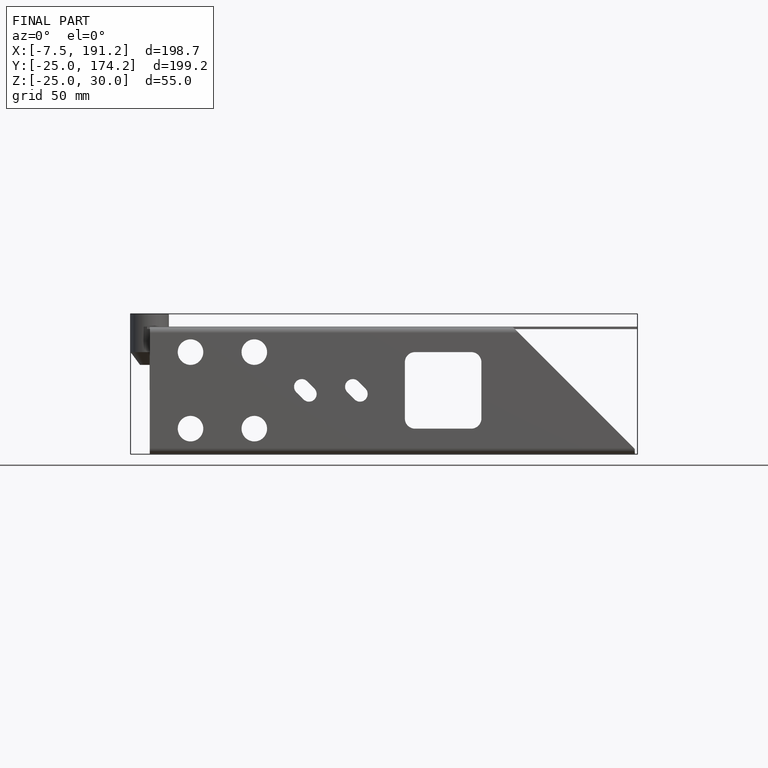
[diagram: finished part — front view with bounding-box wireframe]
